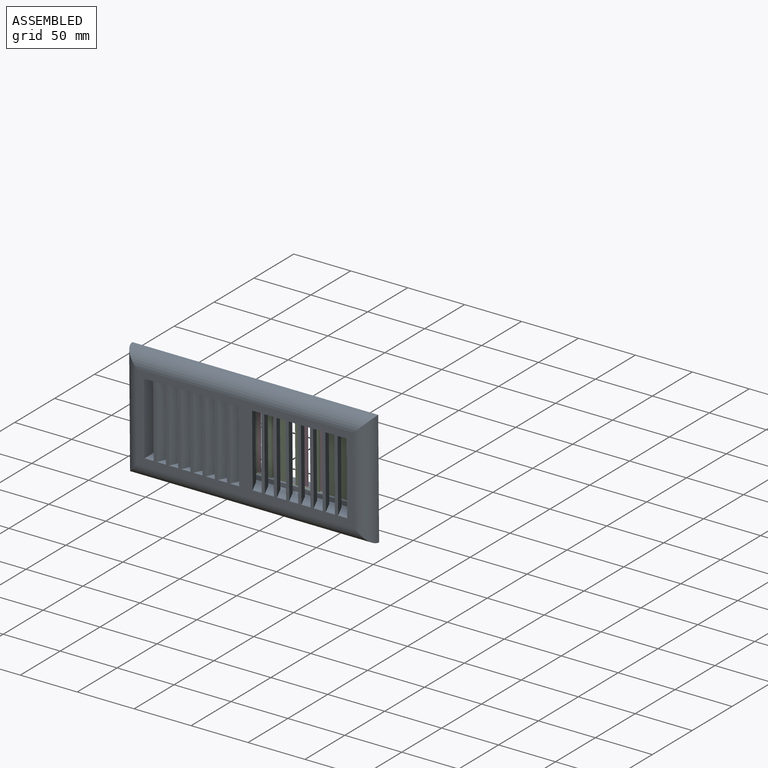
[diagram: assembled view]
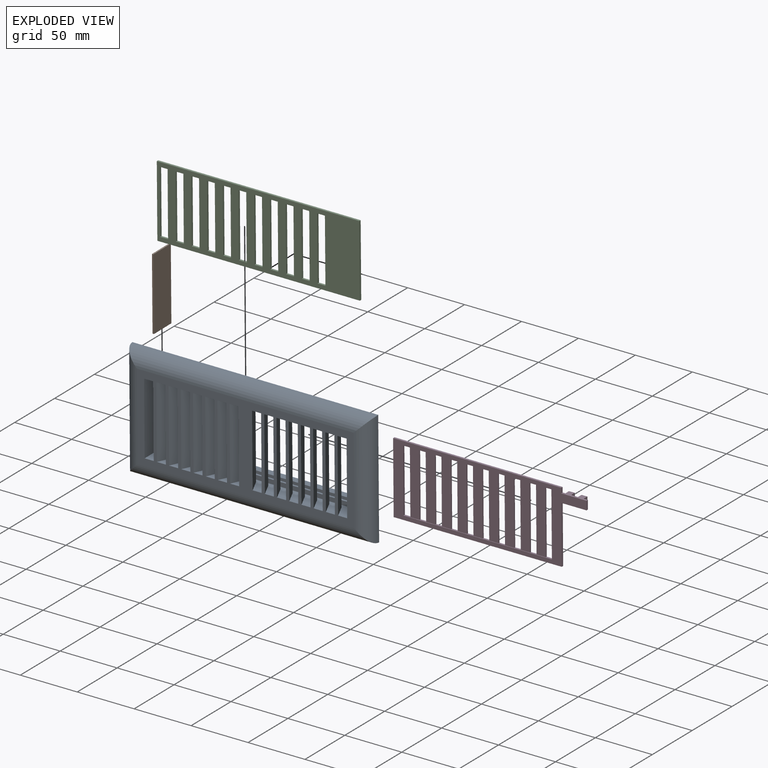
[diagram: exploded view]
GUIDED TOUR — MATED ASSEMBLY (Onshape document 58db32813d69580f7f18db7c, AutoMate assembly 58db32813d69580f7f18db7c_b71ab89867a6a28fbbd796af_60af0f9cc91dfe4a8e0c5db8_default)

This assembly has 4 components, labeled P0..P3 below (a component is one placed occurrence of a part; the same part can appear more than once), held together by 3 mates. A mate is a constraint between two components; its type names the relative motion it leaves free:
  FASTENED — locks the two components together rigidly (no relative motion),
  SLIDER — leaves translation along the listed axis free.
Axis/direction vectors are unit vectors and 'through' points are millimeter coordinates, both in the assembly's world frame.

MATES
  1. FASTENED "Fastened 2": P1 <-> P0, direction (0.000, 0.011, -1.000) through (-60.60, 76.34, 58.53) mm
  2. SLIDER "Slider 1": P3 <-> P2, axis (1.000, 0.000, 0.000) through (22.80, 82.83, 90.35) mm
  3. FASTENED "Fastened 1": P2 <-> P0, direction (0.000, 0.011, -1.000) through (117.20, 81.42, 58.58) mm

ASSEMBLY ORDER
  1. P1 — the base component [order verified]
  2. P0 [order verified]
  3. P2 [order verified]
  4. P3 [order verified]
(P0 verified with a relaxed clearance tolerance: the source model stores slight part interference there.)
Order-tag legend:
  [order verified] — this step's position reverses a verified removal order: the component was checked to insert without passing through the ones already placed.

Of the 4 components, 1 carries the full construction recipe — the FeatureScript program that regenerates the part's solid from scratch; the rest are supplied as boundary geometry only.
Each toured component is shown spotlighted twice — in the assembled view, then in the exploded view, where a leader line traces a displaced component back to its assembled socket (saturated green if recipe-attached, orange if geometry-only; every other component desaturated gray) — followed by its recipe or geometry summary and the mates that hold it.
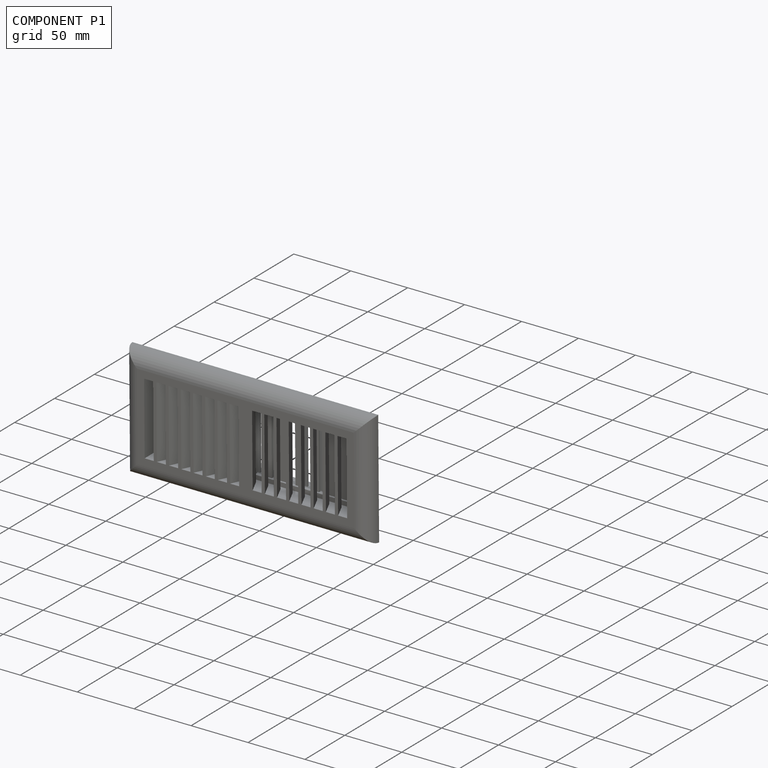
[diagram: component P1 — assembled]
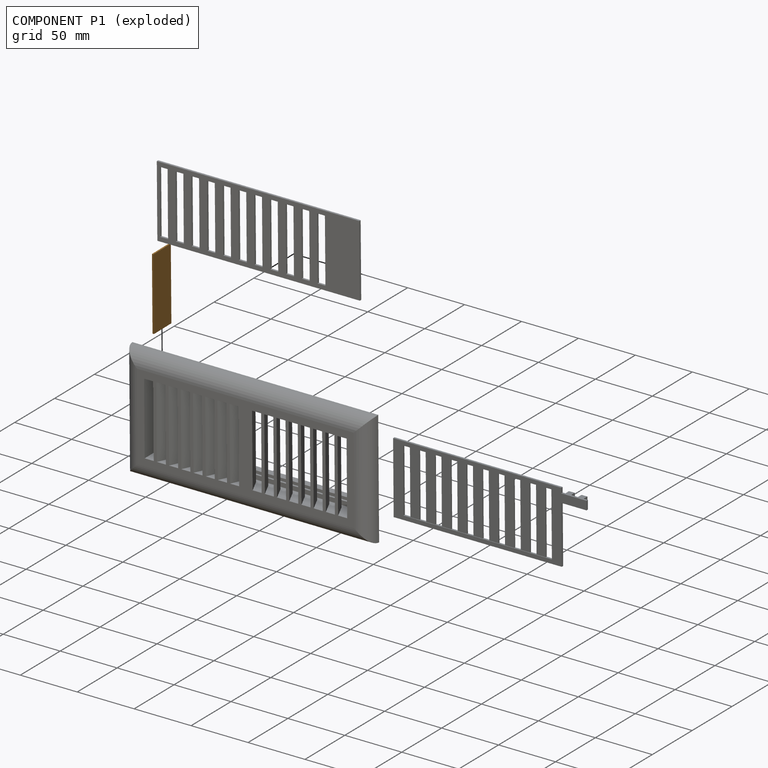
[diagram: component P1 — exploded]
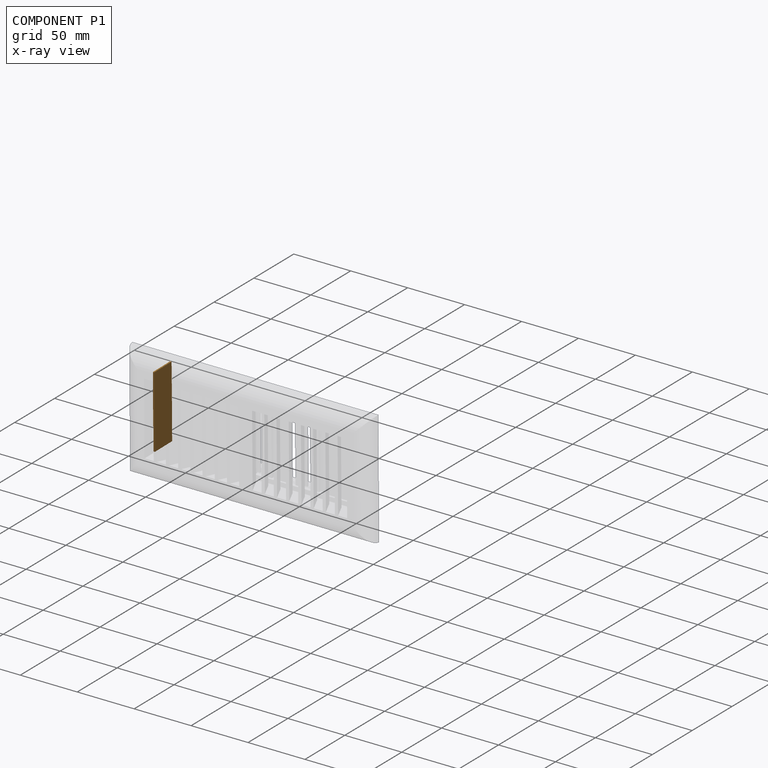
[diagram: component P1 — x-ray view]
COMPONENT P1 — geometry summary (no construction recipe available for this part):
  bounding box: 63.5 x 21.8 x 1.3 mm
  B-rep topology: 1 solid, 6 faces, 24 edges
  volume: 1762 mm^3 (100% of its bounding box)
  symmetry: 2-fold rotationally symmetric about the x axis; 2-fold rotationally symmetric about the y axis; 2-fold rotationally symmetric about the z axis; mirror-symmetric across its x mid-plane, y mid-plane, z mid-plane
Held by: FASTENED mate "Fastened 2" to P0.
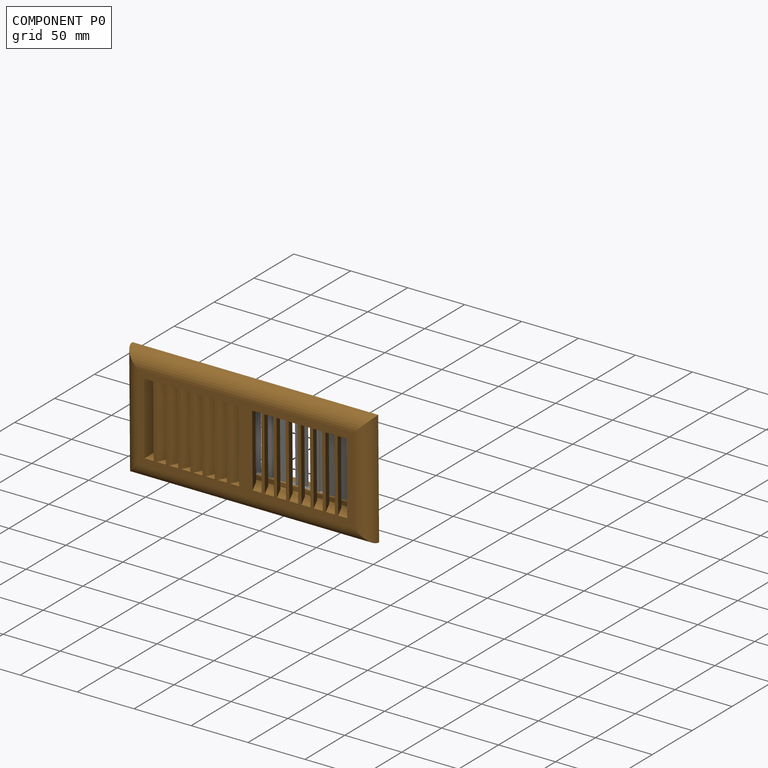
[diagram: component P0 — assembled]
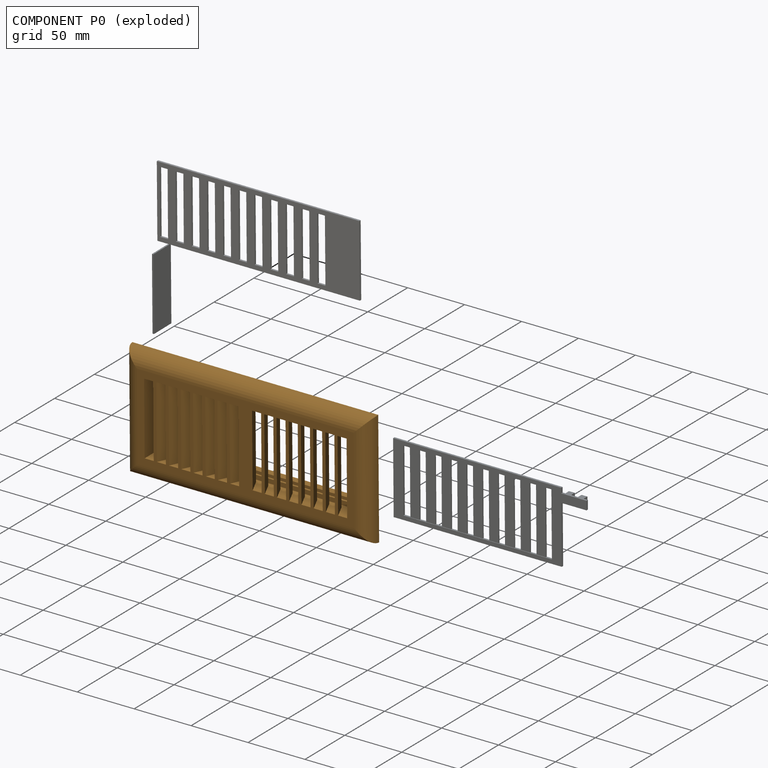
[diagram: component P0 — exploded]
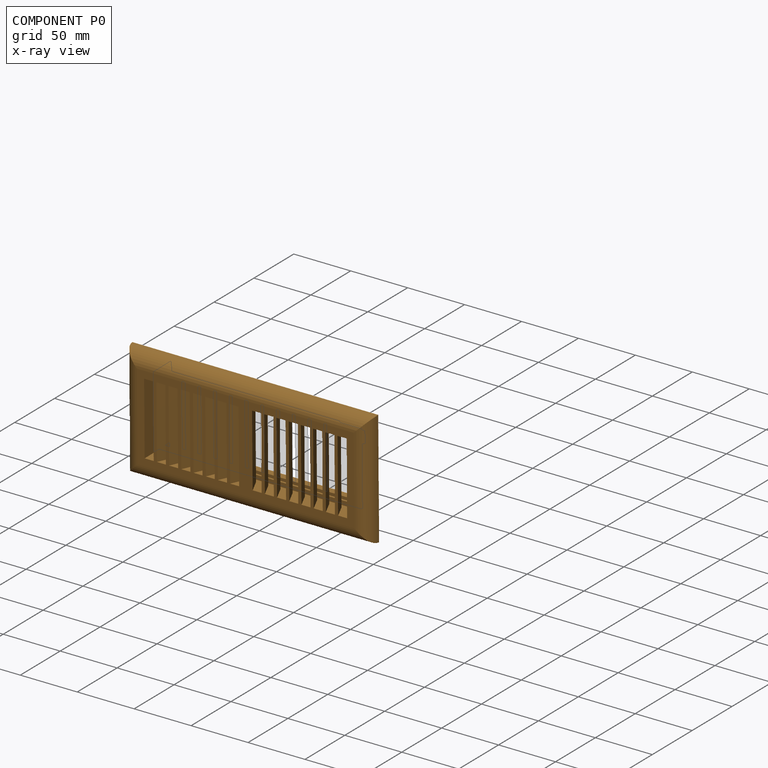
[diagram: component P0 — x-ray view]
COMPONENT P0 — geometry summary (no construction recipe available for this part):
  bounding box: 215.9 x 101.6 x 34.5 mm
  B-rep topology: 1 solid, 90 faces, 594 edges
  volume: 168196 mm^3 (22% of its bounding box)
  symmetry: mirror-symmetric across its z mid-plane
Held by: FASTENED mate "Fastened 2" to P1; FASTENED mate "Fastened 1" to P2.
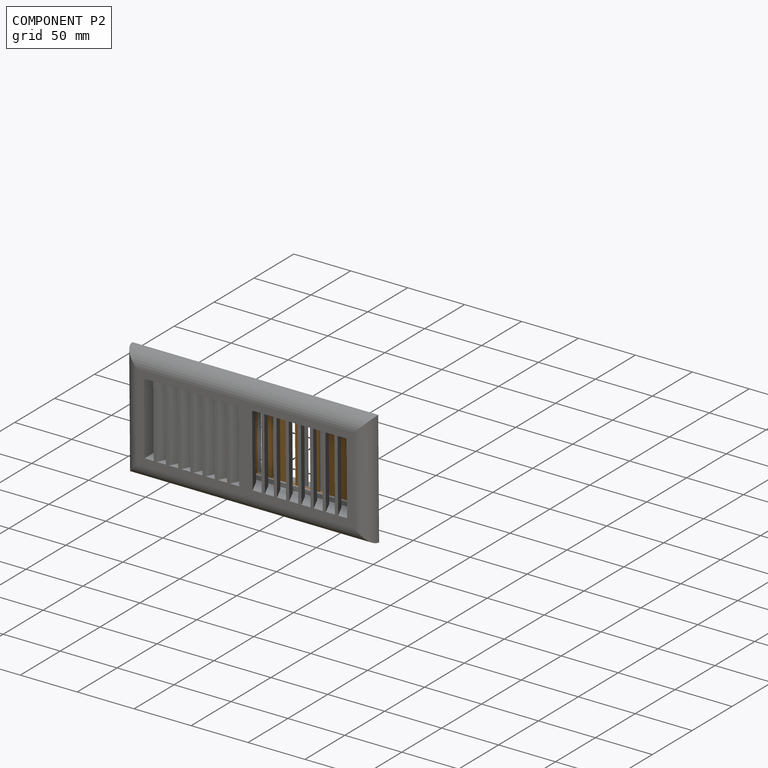
[diagram: component P2 — assembled]
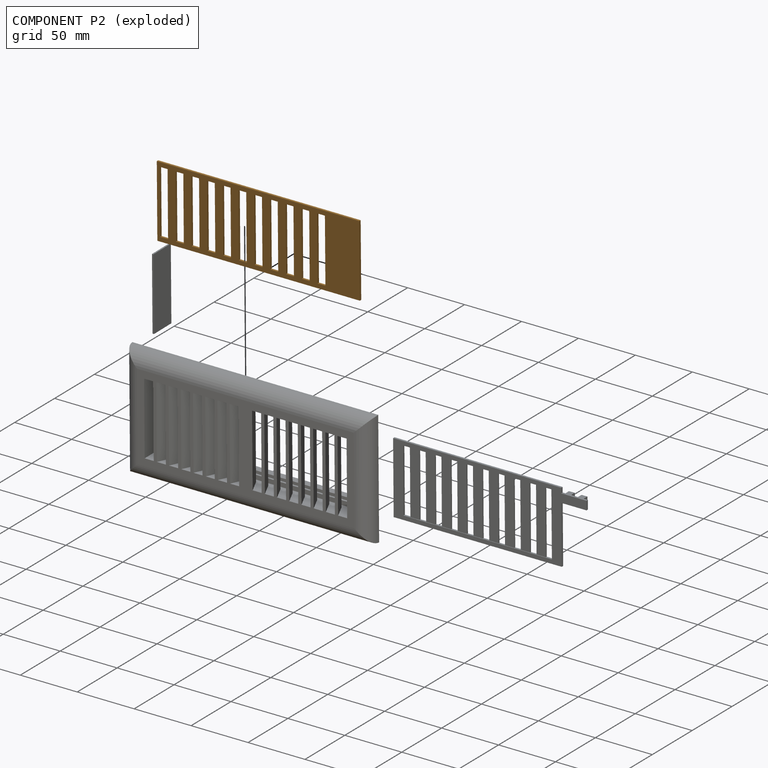
[diagram: component P2 — exploded]
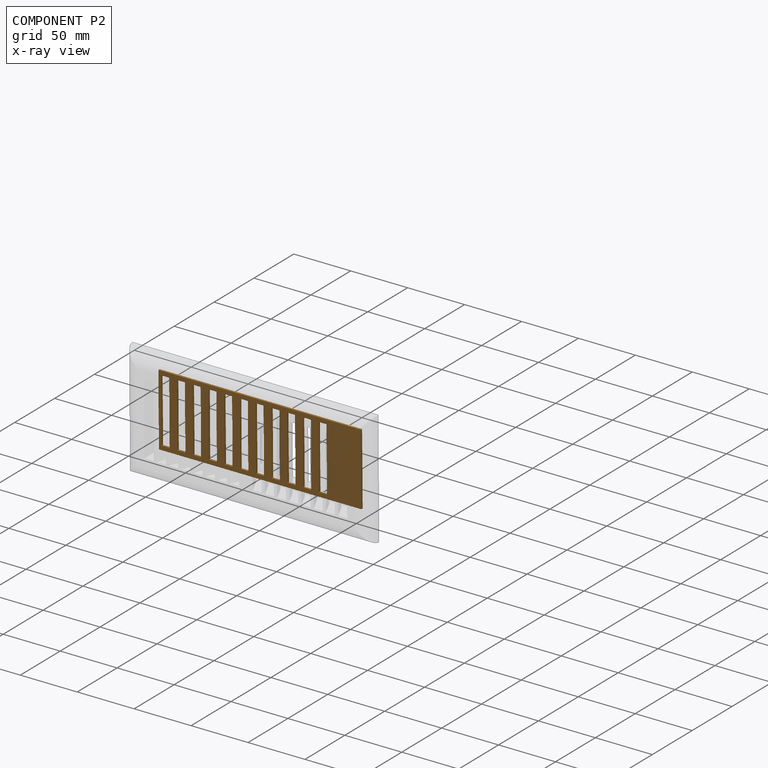
[diagram: component P2 — x-ray view]
COMPONENT P2 — geometry summary (no construction recipe available for this part):
  bounding box: 177.8 x 63.5 x 1.8 mm
  B-rep topology: 1 solid, 50 faces, 288 edges
  volume: 12524 mm^3 (62% of its bounding box)
  symmetry: 2-fold rotationally symmetric about the x axis; mirror-symmetric across its y mid-plane, z mid-plane
Held by: SLIDER mate "Slider 1" to P3; FASTENED mate "Fastened 1" to P0.
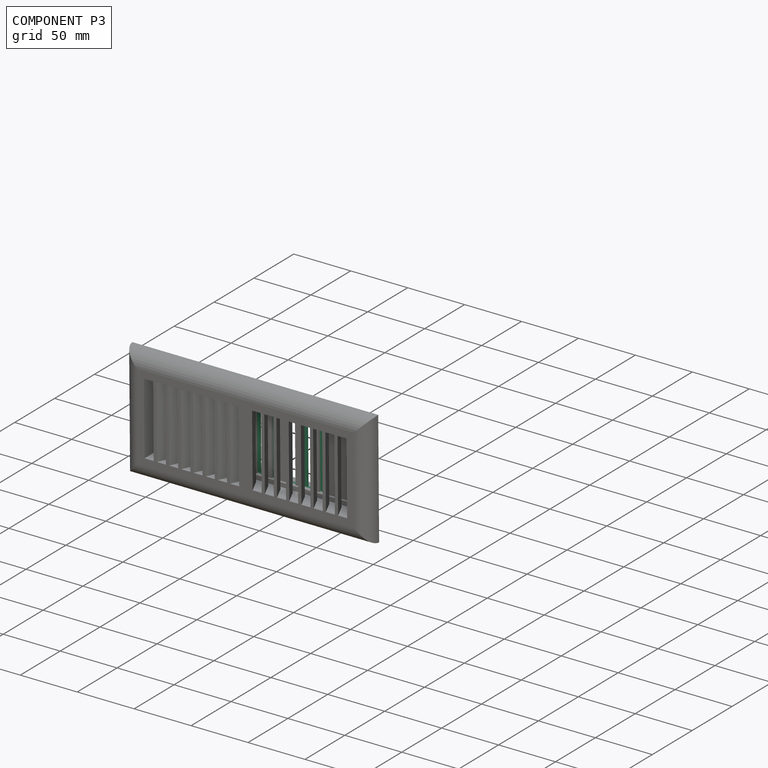
[diagram: component P3 — assembled]
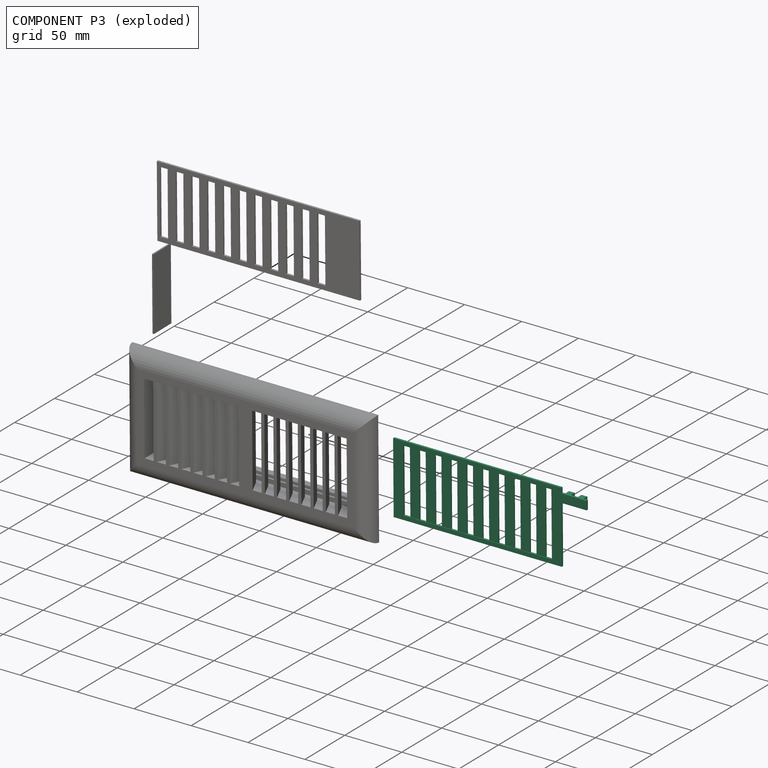
[diagram: component P3 — exploded]
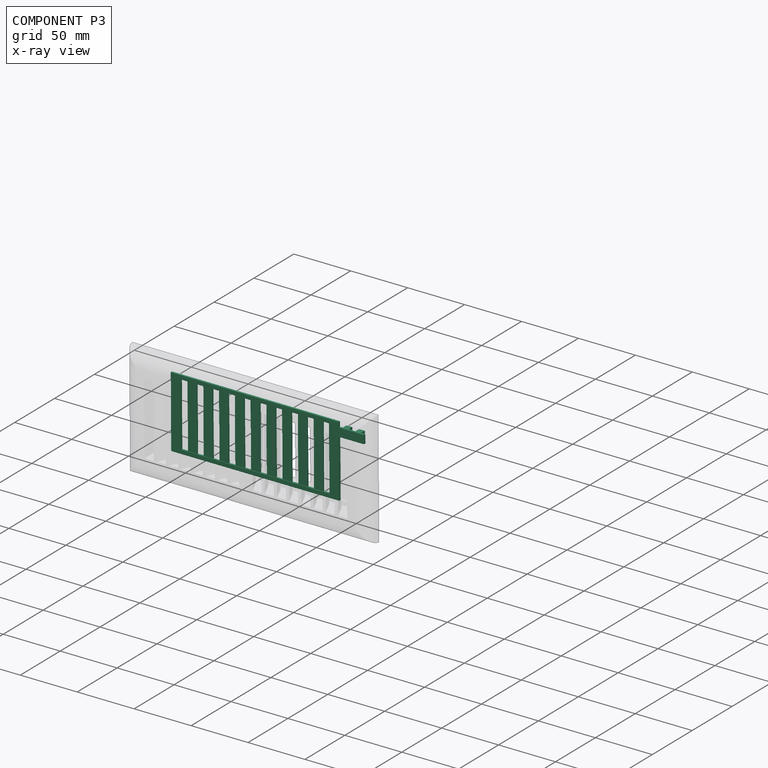
[diagram: component P3 — x-ray view]
COMPONENT P3 — recipe-attached (CADFS 00659328, mesh-verified: the recipe's output STEP matches this component's geometry to below the mesh-comparison resolution (tessellation chordal tolerance ~0.272 mm)).
Held by: SLIDER mate "Slider 1" to P2.
Construction recipe (FeatureScript — the CAD program that rebuilds this solid; sketch coordinates are in the units given by the * unit suffixes, e.g. mm):

FeatureScript 1511;
import(path : "onshape/std/geometry.fs", version : "1511.0");
import(path : "onshape/std/common.fs", version : "1511.0");
const mm = millimeter;
const VERTEX = EntityType.VERTEX;
const EDGE = EntityType.EDGE;
const FACE = EntityType.FACE;
const BODY = EntityType.BODY;
function v(x, y){return vector(x, y);}
function OD(order){return orderDisambiguation(order);}
function OSD(set){return originalSetDisambiguation(set);}
function TD(topology){return topologyDisambiguation(topology);}
function TDD(query){return trueDependencyDisambiguation(query);}
function sQuery(a, b, c) {return sketchEntityQuery(a, b, c);}

annotation { "Feature Type Name" : "Feature", "Feature Type Description" : "" }
export const myFeature = defineFeature(function(context is Context, id is Id, definition is map)
    precondition{}
    {
        {
            var Q0;
            Q0=qCreatedBy(makeId("Front.planeOp"),FACE);
            var sketch = newSketch(context, id + "F0", { "sketchPlane" : qUnion([Q0])});
            skLineSegment(sketch, "E0.bottom", {"start": v(73.81, -31.5) * mm, "end": v(-73.81, -31.5) * mm});
            skLineSegment(sketch, "E0.top", {"start": v(73.81, 31.5) * mm, "end": v(-73.81, 31.5) * mm});
            skLineSegment(sketch, "E0.left", {"start": v(73.81, -31.5) * mm, "end": v(73.81, 31.5) * mm});
            skLineSegment(sketch, "E0.right", {"start": v(-73.81, -31.5) * mm, "end": v(-73.81, 31.5) * mm});
            skPoint(sketch, "E0.middle", {"position": v(0, 0) * mm});
            skLineSegment(sketch, "E1.bottom", {"start": v(65.18, -27.94) * mm, "end": v(-65.18, -27.94) * mm});
            skLineSegment(sketch, "E1.top", {"start": v(65.18, 27.94) * mm, "end": v(-65.18, 27.94) * mm});
            skLineSegment(sketch, "E1.left", {"start": v(65.18, -27.94) * mm, "end": v(65.18, 27.94) * mm});
            skLineSegment(sketch, "E1.right", {"start": v(-65.18, -27.94) * mm, "end": v(-65.18, 27.94) * mm});
            skSolve(sketch);
        }
        {
            var Q0;
            Q0=makeQuery(id+"F0.imprint","IMPRINT",FACE,{"disambiguationData":[TD([[makeQuery(id+"F0.imprint","IMPRINT",EDGE,{"derivedFrom":sQuery(id+"F0.wireOp",EDGE,"E0.bottom")}),-1.0]])]});
            extrude(context, id + "F1", {"entities" : qUnion([Q0]), "depth" : 1.78 * mm});
        }
        {
            var Q0;
            Q0=makeQuery(id+"F1.opExtrude","CAP_FACE",FACE,{"disambiguationData":[OSD([sQuery(id+"F0.wireOp",EDGE,"E0.bottom"),sQuery(id+"F0.wireOp",EDGE,"E0.top"),sQuery(id+"F0.wireOp",EDGE,"E0.left"),sQuery(id+"F0.wireOp",EDGE,"E0.right"),sQuery(id+"F0.wireOp",EDGE,"E1.bottom"),sQuery(id+"F0.wireOp",EDGE,"E1.top"),sQuery(id+"F0.wireOp",EDGE,"E1.left"),sQuery(id+"F0.wireOp",EDGE,"E1.right")])],"isStart":false});
            var sketch = newSketch(context, id + "F2", { "sketchPlane" : qUnion([Q0])});
            skLineSegment(sketch, "E2.bottom", {"start": v(-51.33, -27.94) * mm, "end": v(-59.46, -27.94) * mm});
            skLineSegment(sketch, "E2.top", {"start": v(-51.33, 27.94) * mm, "end": v(-59.46, 27.94) * mm});
            skLineSegment(sketch, "E2.left", {"start": v(-51.33, -27.94) * mm, "end": v(-51.33, 27.94) * mm});
            skLineSegment(sketch, "E2.right", {"start": v(-59.46, -27.94) * mm, "end": v(-59.46, 27.94) * mm});
            skPoint(sketch, "E2.middle", {"position": v(-55.4, 0) * mm});
            skLineSegment(sketch, "E3", {"start": v(-65.18, 27.94) * mm, "end": v(-65.18, 47.6) * mm, "construction": true});
            skLineSegment(sketch, "E4", {"start": v(65.18, 27.94) * mm, "end": v(65.18, 47.82) * mm, "construction": true});
            skPoint(sketch, "E5.1.0.0", {"position": v(-41.54, 0) * mm});
            skLineSegment(sketch, "E5.1.0.1", {"start": v(-37.48, -27.94) * mm, "end": v(-45.6, -27.94) * mm});
            skLineSegment(sketch, "E5.1.0.2", {"start": v(-37.48, 27.94) * mm, "end": v(-45.6, 27.94) * mm});
            skLineSegment(sketch, "E5.1.0.3", {"start": v(-37.48, -27.94) * mm, "end": v(-37.48, 27.94) * mm});
            skLineSegment(sketch, "E5.1.0.4", {"start": v(-45.6, -27.94) * mm, "end": v(-45.6, 27.94) * mm});
            skPoint(sketch, "E5.2.0.0", {"position": v(-27.7, 0) * mm});
            skLineSegment(sketch, "E5.2.0.1", {"start": v(-23.63, -27.94) * mm, "end": v(-31.76, -27.94) * mm});
            skLineSegment(sketch, "E5.2.0.2", {"start": v(-23.63, 27.94) * mm, "end": v(-31.76, 27.94) * mm});
            skLineSegment(sketch, "E5.2.0.3", {"start": v(-23.63, -27.94) * mm, "end": v(-23.63, 27.94) * mm});
            skLineSegment(sketch, "E5.2.0.4", {"start": v(-31.76, -27.94) * mm, "end": v(-31.76, 27.94) * mm});
            skPoint(sketch, "E5.3.0.0", {"position": v(-13.85, 0) * mm});
            skLineSegment(sketch, "E5.3.0.1", {"start": v(-9.78, -27.94) * mm, "end": v(-17.91, -27.94) * mm});
            skLineSegment(sketch, "E5.3.0.2", {"start": v(-9.78, 27.94) * mm, "end": v(-17.91, 27.94) * mm});
            skLineSegment(sketch, "E5.3.0.3", {"start": v(-9.78, -27.94) * mm, "end": v(-9.78, 27.94) * mm});
            skLineSegment(sketch, "E5.3.0.4", {"start": v(-17.91, -27.94) * mm, "end": v(-17.91, 27.94) * mm});
            skPoint(sketch, "E5.4.0.0", {"position": v(0, 0) * mm});
            skLineSegment(sketch, "E5.4.0.1", {"start": v(4.06, -27.94) * mm, "end": v(-4.06, -27.94) * mm});
            skLineSegment(sketch, "E5.4.0.2", {"start": v(4.06, 27.94) * mm, "end": v(-4.06, 27.94) * mm});
            skLineSegment(sketch, "E5.4.0.3", {"start": v(4.06, -27.94) * mm, "end": v(4.06, 27.94) * mm});
            skLineSegment(sketch, "E5.4.0.4", {"start": v(-4.06, -27.94) * mm, "end": v(-4.06, 27.94) * mm});
            skPoint(sketch, "E5.5.0.0", {"position": v(13.85, 0) * mm});
            skLineSegment(sketch, "E5.5.0.1", {"start": v(17.91, -27.94) * mm, "end": v(9.78, -27.94) * mm});
            skLineSegment(sketch, "E5.5.0.2", {"start": v(17.91, 27.94) * mm, "end": v(9.78, 27.94) * mm});
            skLineSegment(sketch, "E5.5.0.3", {"start": v(17.91, -27.94) * mm, "end": v(17.91, 27.94) * mm});
            skLineSegment(sketch, "E5.5.0.4", {"start": v(9.78, -27.94) * mm, "end": v(9.78, 27.94) * mm});
            skPoint(sketch, "E5.6.0.0", {"position": v(27.7, 0) * mm});
            skLineSegment(sketch, "E5.6.0.1", {"start": v(31.76, -27.94) * mm, "end": v(23.63, -27.94) * mm});
            skLineSegment(sketch, "E5.6.0.2", {"start": v(31.76, 27.94) * mm, "end": v(23.63, 27.94) * mm});
            skLineSegment(sketch, "E5.6.0.3", {"start": v(31.76, -27.94) * mm, "end": v(31.76, 27.94) * mm});
            skLineSegment(sketch, "E5.6.0.4", {"start": v(23.63, -27.94) * mm, "end": v(23.63, 27.94) * mm});
            skPoint(sketch, "E5.7.0.0", {"position": v(41.54, 0) * mm});
            skLineSegment(sketch, "E5.7.0.1", {"start": v(45.6, -27.94) * mm, "end": v(37.48, -27.94) * mm});
            skLineSegment(sketch, "E5.7.0.2", {"start": v(45.6, 27.94) * mm, "end": v(37.48, 27.94) * mm});
            skLineSegment(sketch, "E5.7.0.3", {"start": v(45.6, -27.94) * mm, "end": v(45.6, 27.94) * mm});
            skLineSegment(sketch, "E5.7.0.4", {"start": v(37.48, -27.94) * mm, "end": v(37.48, 27.94) * mm});
            skPoint(sketch, "E5.8.0.0", {"position": v(55.4, 0) * mm});
            skLineSegment(sketch, "E5.8.0.1", {"start": v(59.46, -27.94) * mm, "end": v(51.33, -27.94) * mm});
            skLineSegment(sketch, "E5.8.0.2", {"start": v(59.46, 27.94) * mm, "end": v(51.33, 27.94) * mm});
            skLineSegment(sketch, "E5.8.0.3", {"start": v(59.46, -27.94) * mm, "end": v(59.46, 27.94) * mm});
            skLineSegment(sketch, "E5.8.0.4", {"start": v(51.33, -27.94) * mm, "end": v(51.33, 27.94) * mm});
            skLineSegment(sketch, "E5.direction1", {"start": v(-59.46, -27.94) * mm, "end": v(-45.6, -27.94) * mm, "construction": true});
            skSolve(sketch);
        }
        {
            var Q0;
            Q0=qSketchRegion(id+"F2",true);
            extrude(context, id + "F3", {"entities" : qUnion([Q0]), "operationType" : NewBodyOperationType.ADD, "oppositeDirection" : true, "depth" : 1.27 * mm});
        }
        {
            var Q0;
            Q0=makeQuery(id+"F3.boolean.opBoolean","MERGE",FACE,{"derivedFrom":[makeQuery(id+"F1.opExtrude","CAP_FACE",FACE,{"disambiguationData":[OSD([sQuery(id+"F0.wireOp",EDGE,"E0.bottom"),sQuery(id+"F0.wireOp",EDGE,"E0.top"),sQuery(id+"F0.wireOp",EDGE,"E0.left"),sQuery(id+"F0.wireOp",EDGE,"E0.right"),sQuery(id+"F0.wireOp",EDGE,"E1.bottom"),sQuery(id+"F0.wireOp",EDGE,"E1.top"),sQuery(id+"F0.wireOp",EDGE,"E1.left"),sQuery(id+"F0.wireOp",EDGE,"E1.right")])],"isStart":false}),makeQuery(id+"F3.opExtrude","CAP_FACE",FACE,{"disambiguationData":[OSD([sQuery(id+"F2.wireOp",EDGE,"E2.bottom"),sQuery(id+"F2.wireOp",EDGE,"E2.top"),sQuery(id+"F2.wireOp",EDGE,"E2.left"),sQuery(id+"F2.wireOp",EDGE,"E2.right")])],"isStart":true}),makeQuery(id+"F3.opExtrude","CAP_FACE",FACE,{"disambiguationData":[OSD([sQuery(id+"F2.wireOp",EDGE,"E5.1.0.1"),sQuery(id+"F2.wireOp",EDGE,"E5.1.0.2"),sQuery(id+"F2.wireOp",EDGE,"E5.1.0.3"),sQuery(id+"F2.wireOp",EDGE,"E5.1.0.4")])],"isStart":true}),makeQuery(id+"F3.opExtrude","CAP_FACE",FACE,{"disambiguationData":[OSD([sQuery(id+"F2.wireOp",EDGE,"E5.2.0.1"),sQuery(id+"F2.wireOp",EDGE,"E5.2.0.2"),sQuery(id+"F2.wireOp",EDGE,"E5.2.0.3"),sQuery(id+"F2.wireOp",EDGE,"E5.2.0.4")])],"isStart":true}),makeQuery(id+"F3.opExtrude","CAP_FACE",FACE,{"disambiguationData":[OSD([sQuery(id+"F2.wireOp",EDGE,"E5.3.0.1"),sQuery(id+"F2.wireOp",EDGE,"E5.3.0.2"),sQuery(id+"F2.wireOp",EDGE,"E5.3.0.3"),sQuery(id+"F2.wireOp",EDGE,"E5.3.0.4")])],"isStart":true}),makeQuery(id+"F3.opExtrude","CAP_FACE",FACE,{"disambiguationData":[OSD([sQuery(id+"F2.wireOp",EDGE,"E5.4.0.1"),sQuery(id+"F2.wireOp",EDGE,"E5.4.0.2"),sQuery(id+"F2.wireOp",EDGE,"E5.4.0.3"),sQuery(id+"F2.wireOp",EDGE,"E5.4.0.4")])],"isStart":true}),makeQuery(id+"F3.opExtrude","CAP_FACE",FACE,{"disambiguationData":[OSD([sQuery(id+"F2.wireOp",EDGE,"E5.5.0.1"),sQuery(id+"F2.wireOp",EDGE,"E5.5.0.2"),sQuery(id+"F2.wireOp",EDGE,"E5.5.0.3"),sQuery(id+"F2.wireOp",EDGE,"E5.5.0.4")])],"isStart":true}),makeQuery(id+"F3.opExtrude","CAP_FACE",FACE,{"disambiguationData":[OSD([sQuery(id+"F2.wireOp",EDGE,"E5.6.0.1"),sQuery(id+"F2.wireOp",EDGE,"E5.6.0.2"),sQuery(id+"F2.wireOp",EDGE,"E5.6.0.3"),sQuery(id+"F2.wireOp",EDGE,"E5.6.0.4")])],"isStart":true}),makeQuery(id+"F3.opExtrude","CAP_FACE",FACE,{"disambiguationData":[OSD([sQuery(id+"F2.wireOp",EDGE,"E5.7.0.1"),sQuery(id+"F2.wireOp",EDGE,"E5.7.0.2"),sQuery(id+"F2.wireOp",EDGE,"E5.7.0.3"),sQuery(id+"F2.wireOp",EDGE,"E5.7.0.4")])],"isStart":true}),makeQuery(id+"F3.opExtrude","CAP_FACE",FACE,{"disambiguationData":[OSD([sQuery(id+"F2.wireOp",EDGE,"E5.8.0.1"),sQuery(id+"F2.wireOp",EDGE,"E5.8.0.2"),sQuery(id+"F2.wireOp",EDGE,"E5.8.0.3"),sQuery(id+"F2.wireOp",EDGE,"E5.8.0.4")])],"isStart":true})]});
            var sketch = newSketch(context, id + "F4", { "sketchPlane" : qUnion([Q0])});
            skLineSegment(sketch, "E6.left", {"start": v(-65.18, 27.09) * mm, "end": v(-65.18, 19.47) * mm});
            skLineSegment(sketch, "E6.right", {"start": v(-95.95, 27.09) * mm, "end": v(-95.95, 19.47) * mm});
            skLineSegment(sketch, "E7", {"start": v(-95.95, 27.09) * mm, "end": v(-65.18, 27.09) * mm});
            skLineSegment(sketch, "E8", {"start": v(-95.95, 19.47) * mm, "end": v(-65.18, 19.47) * mm});
            skSolve(sketch);
        }
        {
            var Q0;
            Q0=qSketchRegion(id+"F4",true);
            extrude(context, id + "F5", {"entities" : qUnion([Q0]), "operationType" : NewBodyOperationType.ADD, "oppositeDirection" : true, "depth" : 1.78 * mm});
        }
        {
            var Q0;
            Q0=makeQuery(id+"F5.boolean.opBoolean","MERGE",FACE,{"derivedFrom":[makeQuery(id+"F3.boolean.opBoolean","MERGE",FACE,{"derivedFrom":[makeQuery(id+"F1.opExtrude","CAP_FACE",FACE,{"disambiguationData":[OSD([sQuery(id+"F0.wireOp",EDGE,"E0.bottom"),sQuery(id+"F0.wireOp",EDGE,"E0.top"),sQuery(id+"F0.wireOp",EDGE,"E0.left"),sQuery(id+"F0.wireOp",EDGE,"E0.right"),sQuery(id+"F0.wireOp",EDGE,"E1.bottom"),sQuery(id+"F0.wireOp",EDGE,"E1.top"),sQuery(id+"F0.wireOp",EDGE,"E1.left"),sQuery(id+"F0.wireOp",EDGE,"E1.right")])],"isStart":false}),makeQuery(id+"F3.opExtrude","CAP_FACE",FACE,{"disambiguationData":[OSD([sQuery(id+"F2.wireOp",EDGE,"E2.bottom"),sQuery(id+"F2.wireOp",EDGE,"E2.top"),sQuery(id+"F2.wireOp",EDGE,"E2.left"),sQuery(id+"F2.wireOp",EDGE,"E2.right")])],"isStart":true}),makeQuery(id+"F3.opExtrude","CAP_FACE",FACE,{"disambiguationData":[OSD([sQuery(id+"F2.wireOp",EDGE,"E5.1.0.1"),sQuery(id+"F2.wireOp",EDGE,"E5.1.0.2"),sQuery(id+"F2.wireOp",EDGE,"E5.1.0.3"),sQuery(id+"F2.wireOp",EDGE,"E5.1.0.4")])],"isStart":true}),makeQuery(id+"F3.opExtrude","CAP_FACE",FACE,{"disambiguationData":[OSD([sQuery(id+"F2.wireOp",EDGE,"E5.2.0.1"),sQuery(id+"F2.wireOp",EDGE,"E5.2.0.2"),sQuery(id+"F2.wireOp",EDGE,"E5.2.0.3"),sQuery(id+"F2.wireOp",EDGE,"E5.2.0.4")])],"isStart":true}),makeQuery(id+"F3.opExtrude","CAP_FACE",FACE,{"disambiguationData":[OSD([sQuery(id+"F2.wireOp",EDGE,"E5.3.0.1"),sQuery(id+"F2.wireOp",EDGE,"E5.3.0.2"),sQuery(id+"F2.wireOp",EDGE,"E5.3.0.3"),sQuery(id+"F2.wireOp",EDGE,"E5.3.0.4")])],"isStart":true}),makeQuery(id+"F3.opExtrude","CAP_FACE",FACE,{"disambiguationData":[OSD([sQuery(id+"F2.wireOp",EDGE,"E5.4.0.1"),sQuery(id+"F2.wireOp",EDGE,"E5.4.0.2"),sQuery(id+"F2.wireOp",EDGE,"E5.4.0.3"),sQuery(id+"F2.wireOp",EDGE,"E5.4.0.4")])],"isStart":true}),makeQuery(id+"F3.opExtrude","CAP_FACE",FACE,{"disambiguationData":[OSD([sQuery(id+"F2.wireOp",EDGE,"E5.5.0.1"),sQuery(id+"F2.wireOp",EDGE,"E5.5.0.2"),sQuery(id+"F2.wireOp",EDGE,"E5.5.0.3"),sQuery(id+"F2.wireOp",EDGE,"E5.5.0.4")])],"isStart":true}),makeQuery(id+"F3.opExtrude","CAP_FACE",FACE,{"disambiguationData":[OSD([sQuery(id+"F2.wireOp",EDGE,"E5.6.0.1"),sQuery(id+"F2.wireOp",EDGE,"E5.6.0.2"),sQuery(id+"F2.wireOp",EDGE,"E5.6.0.3"),sQuery(id+"F2.wireOp",EDGE,"E5.6.0.4")])],"isStart":true}),makeQuery(id+"F3.opExtrude","CAP_FACE",FACE,{"disambiguationData":[OSD([sQuery(id+"F2.wireOp",EDGE,"E5.7.0.1"),sQuery(id+"F2.wireOp",EDGE,"E5.7.0.2"),sQuery(id+"F2.wireOp",EDGE,"E5.7.0.3"),sQuery(id+"F2.wireOp",EDGE,"E5.7.0.4")])],"isStart":true}),makeQuery(id+"F3.opExtrude","CAP_FACE",FACE,{"disambiguationData":[OSD([sQuery(id+"F2.wireOp",EDGE,"E5.8.0.1"),sQuery(id+"F2.wireOp",EDGE,"E5.8.0.2"),sQuery(id+"F2.wireOp",EDGE,"E5.8.0.3"),sQuery(id+"F2.wireOp",EDGE,"E5.8.0.4")])],"isStart":true})]}),makeQuery(id+"F5.opExtrude","CAP_FACE",FACE,{"disambiguationData":[OSD([sQuery(id+"F4.wireOp",EDGE,"E6.bottom"),sQuery(id+"F4.wireOp",EDGE,"E6.top"),sQuery(id+"F4.wireOp",EDGE,"E6.left"),sQuery(id+"F4.wireOp",EDGE,"E6.right")])],"isStart":true})]});
            var sketch = newSketch(context, id + "F6", { "sketchPlane" : qUnion([Q0])});
            skSolve(sketch);
        }
        {
            var Q0;
            {var subQ24=sQuery(id+"F0.wireOp",EDGE,"E0.bottom");Q0=makeQuery(id+"F6.imprint","IMPRINT",FACE,{"disambiguationData":[TD([[makeQuery(id+"F6.imprint","IMPRINT",EDGE,{"derivedFrom":makeQuery(id+"F1.opExtrude","CAP_EDGE",EDGE,{"disambiguationData":[OSD([subQ24])],"isStart":false})}),-1.0]])]});}
            var sketch = newSketch(context, id + "F7", { "sketchPlane" : qUnion([Q0])});
            skLineSegment(sketch, "E9.bottom", {"start": v(-87.29, 27.09) * mm, "end": v(-92.29, 27.09) * mm});
            skLineSegment(sketch, "E9.top", {"start": v(-87.29, 19.47) * mm, "end": v(-92.29, 19.47) * mm});
            skLineSegment(sketch, "E9.left", {"start": v(-87.29, 27.09) * mm, "end": v(-87.29, 19.47) * mm});
            skLineSegment(sketch, "E9.right", {"start": v(-92.29, 27.09) * mm, "end": v(-92.29, 19.47) * mm});
            skPoint(sketch, "E9.middle", {"position": v(-89.79, 23.28) * mm});
            skLineSegment(sketch, "E10.bottom", {"start": v(-81.3, 27.09) * mm, "end": v(-76.29, 27.09) * mm});
            skLineSegment(sketch, "E10.top", {"start": v(-81.3, 19.47) * mm, "end": v(-76.29, 19.47) * mm});
            skLineSegment(sketch, "E10.left", {"start": v(-81.3, 27.09) * mm, "end": v(-81.3, 19.47) * mm});
            skLineSegment(sketch, "E10.right", {"start": v(-76.29, 27.09) * mm, "end": v(-76.29, 19.47) * mm});
            skSolve(sketch);
        }
        {
            var Q0;
            Q0=qSketchRegion(id+"F7",true);
            extrude(context, id + "F8", {"entities" : qUnion([Q0]), "operationType" : NewBodyOperationType.ADD, "depth" : 6.22 * mm});
        }
        {
            var Q0;
            Q0=makeQuery(id+"F8.opExtrude","CAP_FACE",FACE,{"disambiguationData":[OSD([sQuery(id+"F7.wireOp",EDGE,"E9.bottom"),sQuery(id+"F7.wireOp",EDGE,"E9.top"),sQuery(id+"F7.wireOp",EDGE,"E9.left"),sQuery(id+"F7.wireOp",EDGE,"E9.right")])],"isStart":false});
            fillet(context, id + "F9", {"entities" : qUnion([Q0]), "radius" : 2.44 * mm, "tangentPropagation" : true, "allowEdgeOverflow" : false});
        }
        {
            var Q0;
            Q0=makeQuery(id+"F8.opExtrude","CAP_FACE",FACE,{"disambiguationData":[OSD([sQuery(id+"F7.wireOp",EDGE,"E10.bottom"),sQuery(id+"F7.wireOp",EDGE,"E10.top"),sQuery(id+"F7.wireOp",EDGE,"E10.left"),sQuery(id+"F7.wireOp",EDGE,"E10.right")])],"isStart":false});
            fillet(context, id + "F10", {"entities" : qUnion([Q0]), "radius" : 2.44 * mm, "tangentPropagation" : true, "allowEdgeOverflow" : false});
        }
    });
PROVENANCE & LICENSES
Assembly (occurrences, transforms, mates, per-part STEP geometry): AutoMate dataset, Zenodo record 7776208, CC0.
Construction recipes: CADFS (HuggingFace VladPyatov/CADFS, CC-BY-4.0, layered over the ABC dataset), FeatureScript reconstruction programs keyed by ABC model id.
Join: ABC meta listings map ABC model id -> Onshape documentId; within a shared document, parts are matched by geometric signature (bounding-box dims + volume at 0.1% relative tolerance, exact B-rep face/solid counts).
Verification: 1 of this assembly's 4 components carries a recipe attachment, and every attachment is mesh-verified: the CADFS STEP and the AutoMate member STEP were compared as meshes in their shared local frame (symmetric sampled-point-to-mesh distance); worst across the 1 attachment: below the mesh-comparison resolution (tessellation chordal tolerance ~0.272 mm) on a 181 mm part.
Renders: orthographic iso camera (az 35 / el 25); the floor grid conveys scale (grid pitch printed in each image; no ruler). In the exploded view each component is displaced by its stored offset vector: the offsets alone carry the explosion direction (mate normal/axis signs are not orientation cues and do not encode it), and separation distances are assigned per mate-chain, not proportionally to assembly-order depth.
